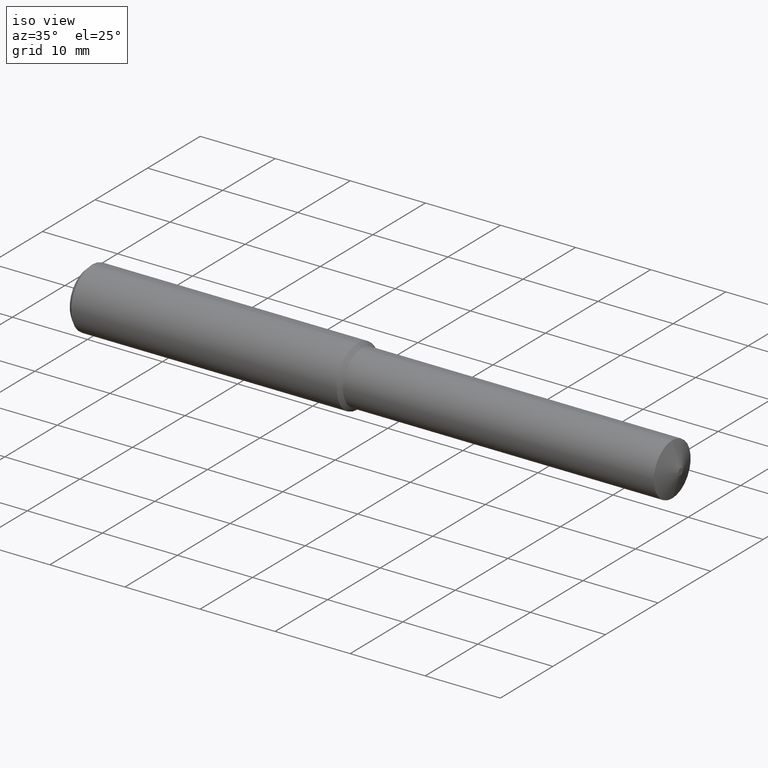
[diagram: clean part render]
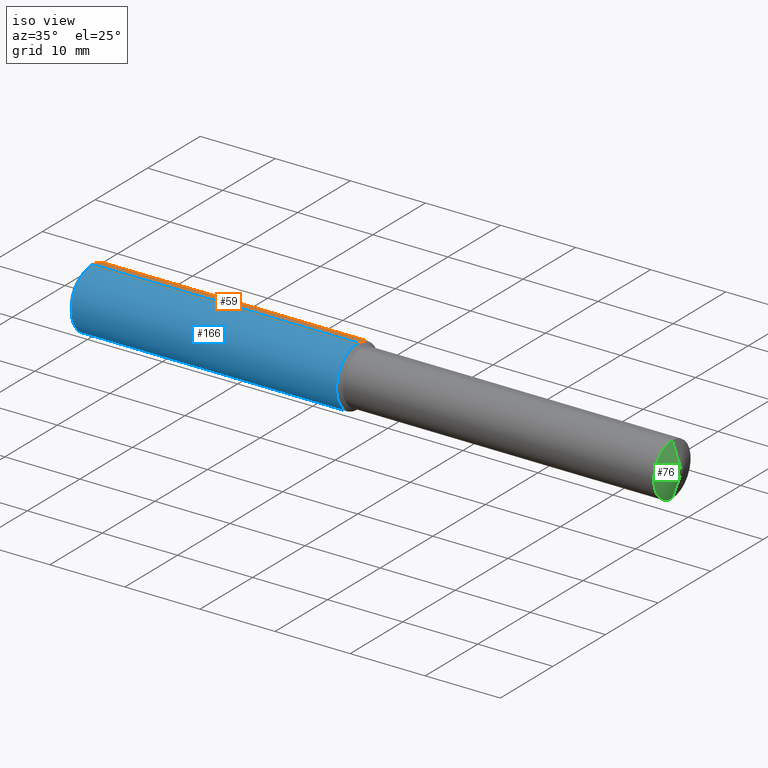
[diagram: same view with three faces highlighted in distinct colors, each labeled with its STEP entity id]
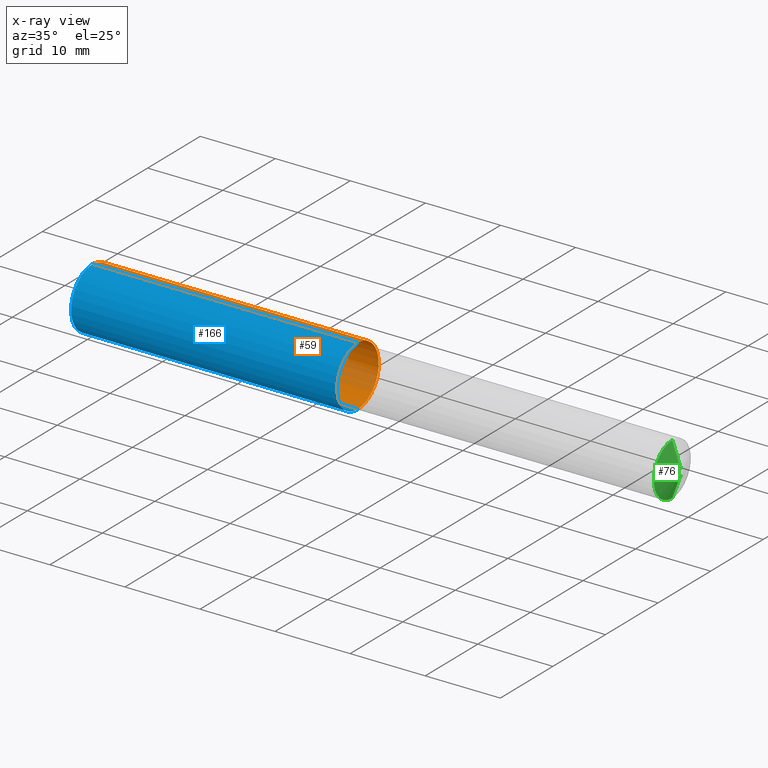
[diagram: x-ray of the same camera — body ghosted, the three highlighted faces saturated]
A machine part, iso view with three faces highlighted in distinct colors.
The next image is the same camera in x-ray (body ghosted, the three faces saturated) — at least one of them is partly hidden behind the body in this view.
Their STEP definitions:

[orange] entity #59 — the highlighted cylindrical surface (partial cylindrical patch) has radius 4 mm, axis along (1, -0, -0).
#5 = AXIS2_PLACEMENT_3D ( 'NONE', #53, #306, #308 ) ;
#6 = CIRCLE ( 'NONE', #351, 0.1574803149606300579 ) ;
#15 = ORIENTED_EDGE ( 'NONE', *, *, #123, .T. ) ;
#19 = CARTESIAN_POINT ( 'NONE',  ( -0.03808593750000075634, 0.000000000000000000, 0.000000000000000000 ) ) ;
#22 = DIRECTION ( 'NONE',  ( 1.000000000000000000, -0.000000000000000000, -0.000000000000000000 ) ) ;
#29 = VERTEX_POINT ( 'NONE', #343 ) ;
#42 = ORIENTED_EDGE ( 'NONE', *, *, #58, .T. ) ;
#53 = CARTESIAN_POINT ( 'NONE',  ( 0.02500000000000000139, 0.000000000000000000, 0.000000000000000000 ) ) ;
#58 = EDGE_CURVE ( 'NONE', #333, #359, #129, .T. ) ;
#59 = ADVANCED_FACE ( 'NONE', ( #225 ), #312, .T. ) ;
#65 = ORIENTED_EDGE ( 'NONE', *, *, #150, .F. ) ;
#79 = DIRECTION ( 'NONE',  ( 0.000000000000000000, 0.000000000000000000, -1.000000000000000000 ) ) ;
#96 = EDGE_CURVE ( 'NONE', #29, #250, #196, .T. ) ;
#98 = DIRECTION ( 'NONE',  ( 1.000000000000000000, -0.000000000000000000, -0.000000000000000000 ) ) ;
#117 = ORIENTED_EDGE ( 'NONE', *, *, #96, .F. ) ;
#123 = EDGE_CURVE ( 'NONE', #29, #333, #259, .T. ) ;
#129 = LINE ( 'NONE', #309, #288 ) ;
#150 = EDGE_CURVE ( 'NONE', #250, #359, #6, .T. ) ;
#155 = AXIS2_PLACEMENT_3D ( 'NONE', #19, #98, #252 ) ;
#161 = DIRECTION ( 'NONE',  ( 1.000000000000000000, -0.000000000000000000, -0.000000000000000000 ) ) ;
#196 = LINE ( 'NONE', #365, #275 ) ;
#225 = FACE_OUTER_BOUND ( 'NONE', #245, .T. ) ;
#230 = CARTESIAN_POINT ( 'NONE',  ( 0.02500000000000000139, 1.928577636452525534E-17, 0.1574803149606299191 ) ) ;
#245 = EDGE_LOOP ( 'NONE', ( #15, #42, #65, #117 ) ) ;
#250 = VERTEX_POINT ( 'NONE', #296 ) ;
#252 = DIRECTION ( 'NONE',  ( 0.000000000000000000, 0.000000000000000000, -1.000000000000000000 ) ) ;
#259 = CIRCLE ( 'NONE', #5, 0.1574803149606299191 ) ;
#275 = VECTOR ( 'NONE', #161, 39.37007874015748143 ) ;
#279 = CARTESIAN_POINT ( 'NONE',  ( 1.417322834645669216, 0.000000000000000000, 0.000000000000000000 ) ) ;
#288 = VECTOR ( 'NONE', #310, 39.37007874015748143 ) ;
#296 = CARTESIAN_POINT ( 'NONE',  ( 1.417322834645669216, 1.928577636452526458E-17, -0.1574803149606300579 ) ) ;
#306 = DIRECTION ( 'NONE',  ( 1.000000000000000000, -0.000000000000000000, -0.000000000000000000 ) ) ;
#308 = DIRECTION ( 'NONE',  ( 0.000000000000000000, 0.000000000000000000, -1.000000000000000000 ) ) ;
#309 = CARTESIAN_POINT ( 'NONE',  ( -0.03808593750000075634, 1.928577636452525842E-17, 0.1574803149606300023 ) ) ;
#310 = DIRECTION ( 'NONE',  ( 1.000000000000000000, -0.000000000000000000, -0.000000000000000000 ) ) ;
#312 = CYLINDRICAL_SURFACE ( 'NONE', #155, 0.1574803149606300023 ) ;
#333 = VERTEX_POINT ( 'NONE', #230 ) ;
#343 = CARTESIAN_POINT ( 'NONE',  ( 0.02500000000000000139, 0.000000000000000000, -0.1574803149606299191 ) ) ;
#345 = CARTESIAN_POINT ( 'NONE',  ( 1.417322834645669216, 0.000000000000000000, 0.1574803149606300579 ) ) ;
#351 = AXIS2_PLACEMENT_3D ( 'NONE', #279, #22, #79 ) ;
#359 = VERTEX_POINT ( 'NONE', #345 ) ;
#365 = CARTESIAN_POINT ( 'NONE',  ( -0.03808593750000075634, 0.000000000000000000, -0.1574803149606300023 ) ) ;

[blue] entity #166 — the highlighted cylindrical surface (partial cylindrical patch) has radius 4 mm, axis along (1, -0, -0).
#27 = DIRECTION ( 'NONE',  ( 0.000000000000000000, 0.000000000000000000, -1.000000000000000000 ) ) ;
#29 = VERTEX_POINT ( 'NONE', #343 ) ;
#34 = CARTESIAN_POINT ( 'NONE',  ( 1.417322834645669216, 0.000000000000000000, 0.000000000000000000 ) ) ;
#58 = EDGE_CURVE ( 'NONE', #333, #359, #129, .T. ) ;
#74 = AXIS2_PLACEMENT_3D ( 'NONE', #374, #137, #106 ) ;
#78 = FACE_OUTER_BOUND ( 'NONE', #139, .T. ) ;
#96 = EDGE_CURVE ( 'NONE', #29, #250, #196, .T. ) ;
#101 = CARTESIAN_POINT ( 'NONE',  ( -0.03808593750000075634, 0.000000000000000000, 0.000000000000000000 ) ) ;
#106 = DIRECTION ( 'NONE',  ( 0.000000000000000000, 0.000000000000000000, -1.000000000000000000 ) ) ;
#118 = AXIS2_PLACEMENT_3D ( 'NONE', #101, #226, #340 ) ;
#129 = LINE ( 'NONE', #309, #288 ) ;
#137 = DIRECTION ( 'NONE',  ( 1.000000000000000000, -0.000000000000000000, -0.000000000000000000 ) ) ;
#139 = EDGE_LOOP ( 'NONE', ( #271, #326, #355, #185 ) ) ;
#156 = AXIS2_PLACEMENT_3D ( 'NONE', #34, #314, #27 ) ;
#161 = DIRECTION ( 'NONE',  ( 1.000000000000000000, -0.000000000000000000, -0.000000000000000000 ) ) ;
#166 = ADVANCED_FACE ( 'NONE', ( #78 ), #193, .T. ) ;
#185 = ORIENTED_EDGE ( 'NONE', *, *, #304, .F. ) ;
#193 = CYLINDRICAL_SURFACE ( 'NONE', #118, 0.1574803149606300023 ) ;
#196 = LINE ( 'NONE', #365, #275 ) ;
#204 = CIRCLE ( 'NONE', #156, 0.1574803149606300579 ) ;
#226 = DIRECTION ( 'NONE',  ( 1.000000000000000000, -0.000000000000000000, -0.000000000000000000 ) ) ;
#230 = CARTESIAN_POINT ( 'NONE',  ( 0.02500000000000000139, 1.928577636452525534E-17, 0.1574803149606299191 ) ) ;
#250 = VERTEX_POINT ( 'NONE', #296 ) ;
#271 = ORIENTED_EDGE ( 'NONE', *, *, #58, .F. ) ;
#275 = VECTOR ( 'NONE', #161, 39.37007874015748143 ) ;
#288 = VECTOR ( 'NONE', #310, 39.37007874015748143 ) ;
#296 = CARTESIAN_POINT ( 'NONE',  ( 1.417322834645669216, 1.928577636452526458E-17, -0.1574803149606300579 ) ) ;
#304 = EDGE_CURVE ( 'NONE', #359, #250, #204, .T. ) ;
#309 = CARTESIAN_POINT ( 'NONE',  ( -0.03808593750000075634, 1.928577636452525842E-17, 0.1574803149606300023 ) ) ;
#310 = DIRECTION ( 'NONE',  ( 1.000000000000000000, -0.000000000000000000, -0.000000000000000000 ) ) ;
#314 = DIRECTION ( 'NONE',  ( 1.000000000000000000, -0.000000000000000000, -0.000000000000000000 ) ) ;
#326 = ORIENTED_EDGE ( 'NONE', *, *, #367, .T. ) ;
#333 = VERTEX_POINT ( 'NONE', #230 ) ;
#340 = DIRECTION ( 'NONE',  ( 0.000000000000000000, 0.000000000000000000, -1.000000000000000000 ) ) ;
#343 = CARTESIAN_POINT ( 'NONE',  ( 0.02500000000000000139, 0.000000000000000000, -0.1574803149606299191 ) ) ;
#345 = CARTESIAN_POINT ( 'NONE',  ( 1.417322834645669216, 0.000000000000000000, 0.1574803149606300579 ) ) ;
#346 = CIRCLE ( 'NONE', #74, 0.1574803149606299191 ) ;
#355 = ORIENTED_EDGE ( 'NONE', *, *, #96, .T. ) ;
#359 = VERTEX_POINT ( 'NONE', #345 ) ;
#365 = CARTESIAN_POINT ( 'NONE',  ( -0.03808593750000075634, 0.000000000000000000, -0.1574803149606300023 ) ) ;
#367 = EDGE_CURVE ( 'NONE', #333, #29, #346, .T. ) ;
#374 = CARTESIAN_POINT ( 'NONE',  ( 0.02500000000000000139, 0.000000000000000000, 0.000000000000000000 ) ) ;

[green] entity #76 — the highlighted conical surface has half-angle 70 deg.
#8 = EDGE_CURVE ( 'NONE', #303, #319, #145, .T. ) ;
#16 = LINE ( 'NONE', #251, #134 ) ;
#21 = CONICAL_SURFACE ( 'NONE', #102, 0.01750000000000038677, 1.221730476396031051 ) ;
#24 = DIRECTION ( 'NONE',  ( 1.000000000000000000, -0.000000000000000000, -0.000000000000000000 ) ) ;
#50 = EDGE_CURVE ( 'NONE', #360, #319, #72, .T. ) ;
#52 = DIRECTION ( 'NONE',  ( -0.3420201433256684354, 1.150791560227850516E-16, -0.9396926207859085389 ) ) ;
#57 = CARTESIAN_POINT ( 'NONE',  ( 3.110236220472441193, 9.521628863370716354E-18, -0.01750000000000038677 ) ) ;
#72 = CIRCLE ( 'NONE', #315, 0.1380000000000003724 ) ;
#75 = DIRECTION ( 'NONE',  ( 0.000000000000000000, 0.000000000000000000, 1.000000000000000000 ) ) ;
#76 = ADVANCED_FACE ( 'NONE', ( #258 ), #21, .T. ) ;
#77 = CARTESIAN_POINT ( 'NONE',  ( 3.066377807243363840, 0.000000000000000000, 0.000000000000000000 ) ) ;
#83 = EDGE_CURVE ( 'NONE', #331, #303, #253, .T. ) ;
#102 = AXIS2_PLACEMENT_3D ( 'NONE', #371, #229, #75 ) ;
#104 = DIRECTION ( 'NONE',  ( 1.000000000000000000, -0.000000000000000000, -0.000000000000000000 ) ) ;
#113 = CARTESIAN_POINT ( 'NONE',  ( 3.066377807243363840, 1.690012582823352312E-17, -0.1380000000000004001 ) ) ;
#116 = AXIS2_PLACEMENT_3D ( 'NONE', #130, #104, #218 ) ;
#126 = ORIENTED_EDGE ( 'NONE', *, *, #83, .F. ) ;
#130 = CARTESIAN_POINT ( 'NONE',  ( 3.110236220472441193, 0.000000000000000000, 0.000000000000000000 ) ) ;
#134 = VECTOR ( 'NONE', #280, 39.37007874015748143 ) ;
#136 = CARTESIAN_POINT ( 'NONE',  ( 3.110236220472441193, 0.000000000000000000, 0.01750000000000038677 ) ) ;
#138 = EDGE_CURVE ( 'NONE', #331, #360, #16, .T. ) ;
#145 = LINE ( 'NONE', #167, #227 ) ;
#167 = CARTESIAN_POINT ( 'NONE',  ( 3.110236220472441193, 2.143131898507915367E-18, -0.01750000000000038677 ) ) ;
#177 = EDGE_LOOP ( 'NONE', ( #182, #126, #305, #354 ) ) ;
#182 = ORIENTED_EDGE ( 'NONE', *, *, #8, .F. ) ;
#197 = CARTESIAN_POINT ( 'NONE',  ( 3.066377807243363840, 0.000000000000000000, 0.1380000000000004001 ) ) ;
#218 = DIRECTION ( 'NONE',  ( 0.000000000000000000, 0.000000000000000000, -1.000000000000000000 ) ) ;
#227 = VECTOR ( 'NONE', #52, 39.37007874015748143 ) ;
#229 = DIRECTION ( 'NONE',  ( -1.000000000000000000, 0.000000000000000000, 0.000000000000000000 ) ) ;
#251 = CARTESIAN_POINT ( 'NONE',  ( 3.110236220472441193, 0.000000000000000000, 0.01750000000000038677 ) ) ;
#253 = CIRCLE ( 'NONE', #116, 0.01750000000000038677 ) ;
#258 = FACE_OUTER_BOUND ( 'NONE', #177, .T. ) ;
#280 = DIRECTION ( 'NONE',  ( -0.3420201433256684354, 0.000000000000000000, 0.9396926207859085389 ) ) ;
#303 = VERTEX_POINT ( 'NONE', #57 ) ;
#305 = ORIENTED_EDGE ( 'NONE', *, *, #138, .T. ) ;
#315 = AXIS2_PLACEMENT_3D ( 'NONE', #77, #24, #369 ) ;
#319 = VERTEX_POINT ( 'NONE', #113 ) ;
#331 = VERTEX_POINT ( 'NONE', #136 ) ;
#354 = ORIENTED_EDGE ( 'NONE', *, *, #50, .T. ) ;
#360 = VERTEX_POINT ( 'NONE', #197 ) ;
#369 = DIRECTION ( 'NONE',  ( 0.000000000000000000, 0.000000000000000000, -1.000000000000000000 ) ) ;
#371 = CARTESIAN_POINT ( 'NONE',  ( 3.110236220472441193, 0.000000000000000000, 0.000000000000000000 ) ) ;